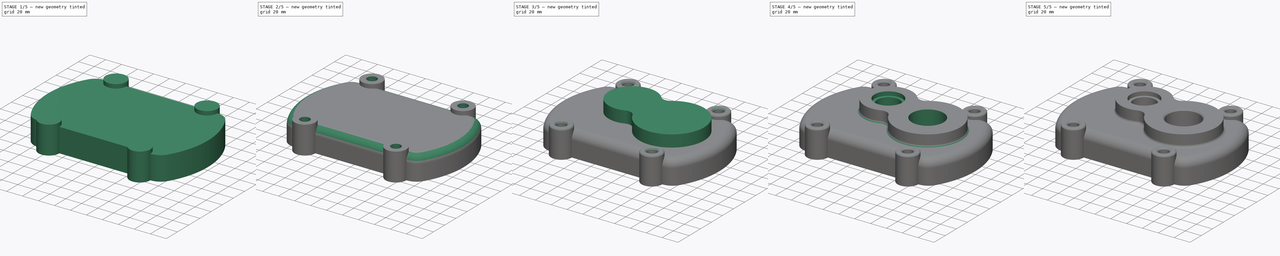
[diagram: build sequence overview — one tinted view per stage of 5, left to right]
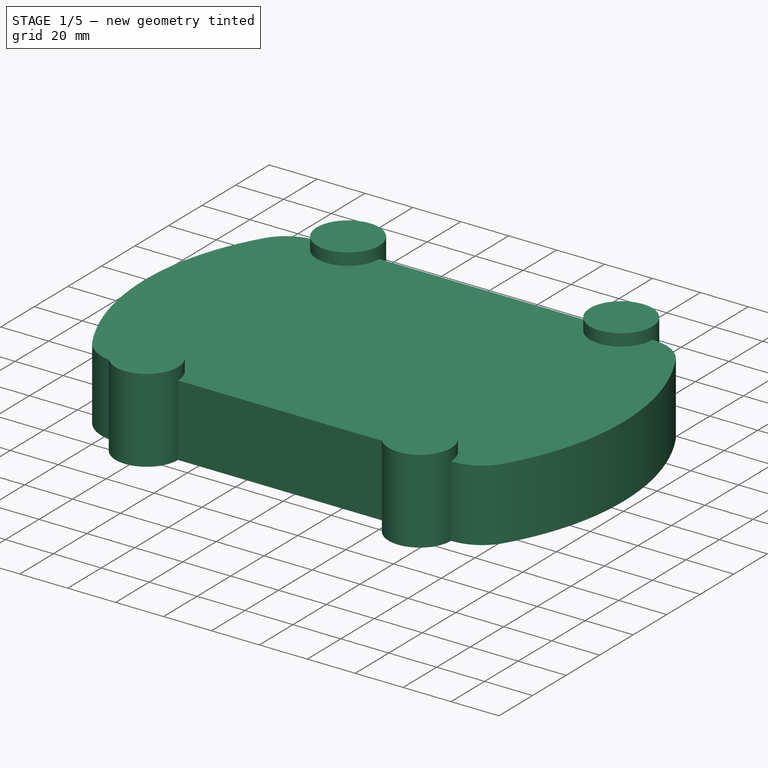
[diagram: stage 1 of 5 — iso view after this stage's code; geometry added in this stage tinted green]
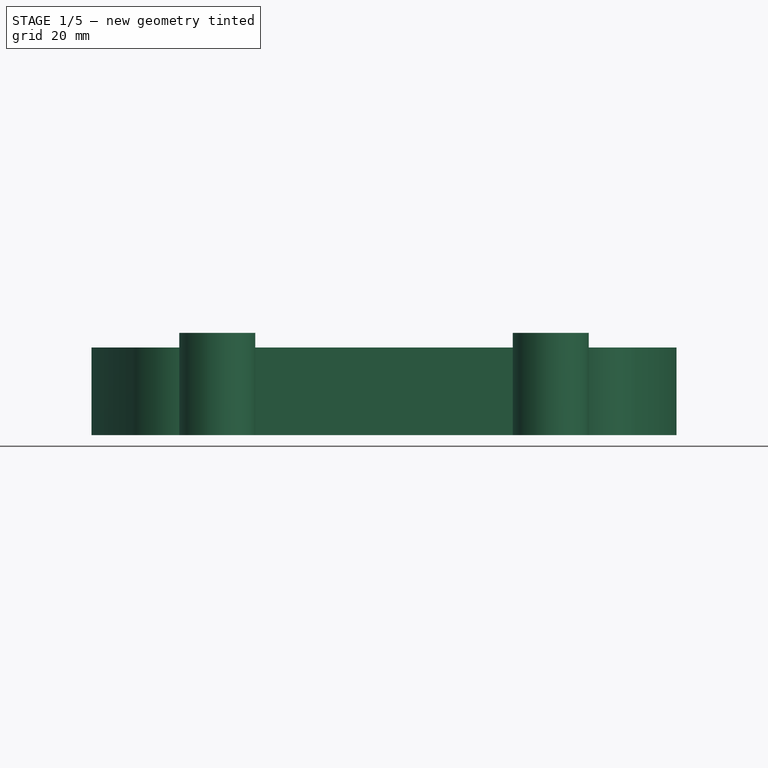
[diagram: stage 1 of 5 — front view after this stage's code; geometry added in this stage tinted green]
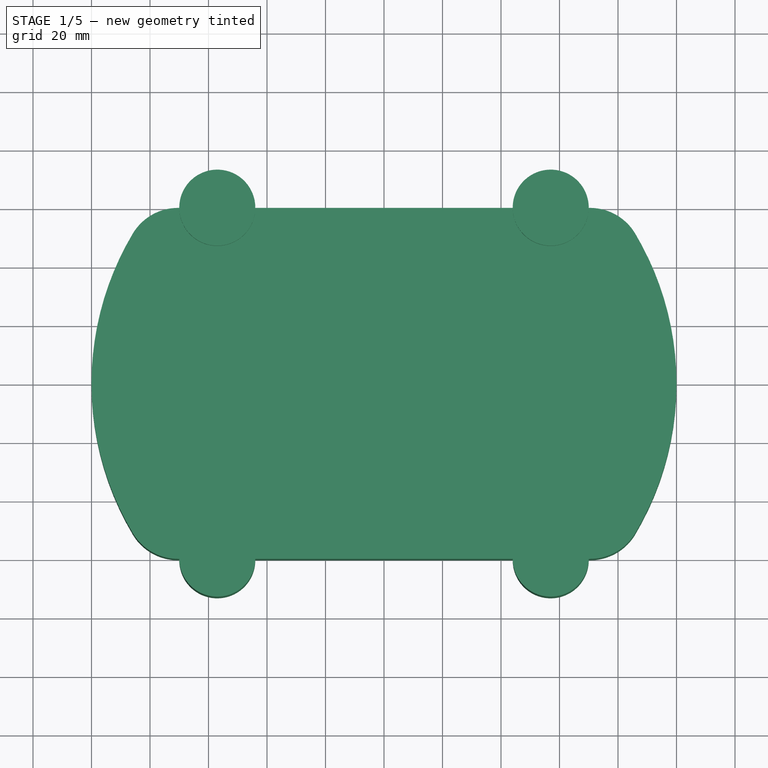
[diagram: stage 1 of 5 — top view after this stage's code; geometry added in this stage tinted green]
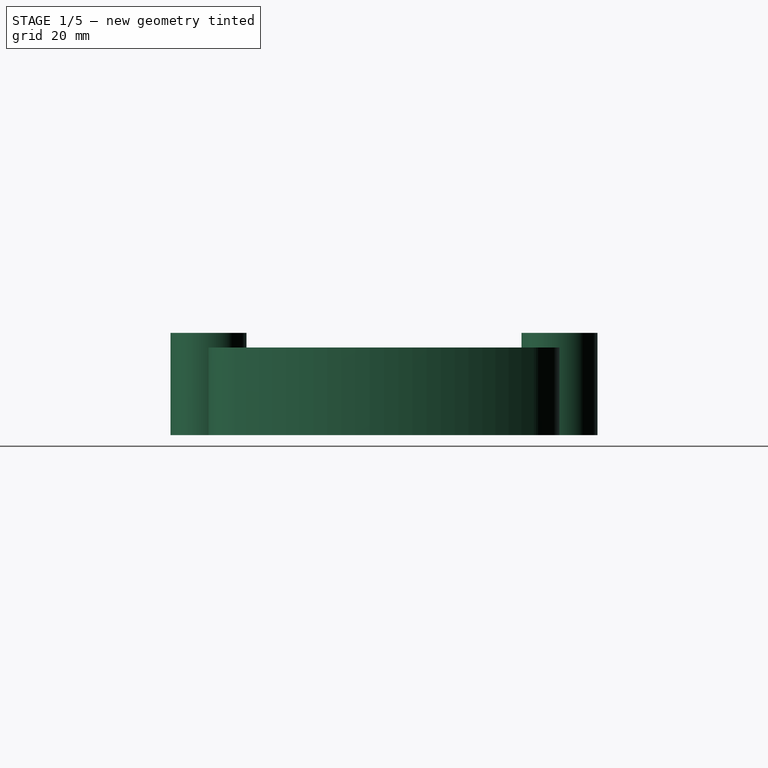
[diagram: stage 1 of 5 — right view after this stage's code; geometry added in this stage tinted green]
FCSTD DOCUMENT  (FreeCAD 0.16RUnknown)
Label: 1
License: All rights reserved
LicenseURL: http://en.wikipedia.org/wiki/All_rights_reserved
objects: Sketcher::SketchObject×7, PartDesign::Fillet×5, PartDesign::Pocket×4, PartDesign::Pad×3, PartDesign::Chamfer×2, Part::MultiFuse×1
note: 29 computed .brp shape members not serialized (recipe doc carries the construction recipe); baked Part::Feature solids carry a one-line shape summary decoded from their .brp

FEATURE [Sketcher::SketchObject] Sketch
  sketch-geometry (4):
    g0: LineSegment StartX=-80 StartY=60 StartZ=0 EndX=80 EndY=60 EndZ=0
    g1: LineSegment StartX=80 StartY=-60 StartZ=0 EndX=-80 EndY=-60 EndZ=0
    g2: ArcOfCircle CenterX=0 CenterY=0 CenterZ=0 NormalX=0 NormalY=0 NormalZ=1 Radius=100 StartAngle=2.49809 EndAngle=3.78509
    g3: ArcOfCircle CenterX=-2e-11 CenterY=-2.4e-11 CenterZ=0 NormalX=0 NormalY=0 NormalZ=1 Radius=100 StartAngle=5.63968 EndAngle=6.92669
  constraints (11):
    c: Coincident(g2,g-1)
    c: Radius(g2) = 100
    c: Coincident(g0,g3)
    c: Coincident(g0,g2)
    c: Coincident(g1,g2)
    c: Radius(g3) = 100
    c: Symmetric(g0,g1,g-1)
    c: DistanceY(g0) = 60
    c: Symmetric(g0,g0,g-2)
    c: Horizontal(g1)
    c: Coincident(g3,g1)
FEATURE [PartDesign::Pad] Pad
  Length = 30
  Length2 = 100
  Sketch = -> Sketch
  Type = 0
FEATURE [PartDesign::Fillet] Fillet
  Base = -> Pad [Edge1,Edge2,Edge5,Edge8]
  Radius = 18
FEATURE [PartDesign::Pad] Pad001
  Length = 5
  Length2 = 30
  Placement = pos=(0,0,30) rot=(0,0,1;0rad)
  Sketch = -> Sketch001
  Type = 4
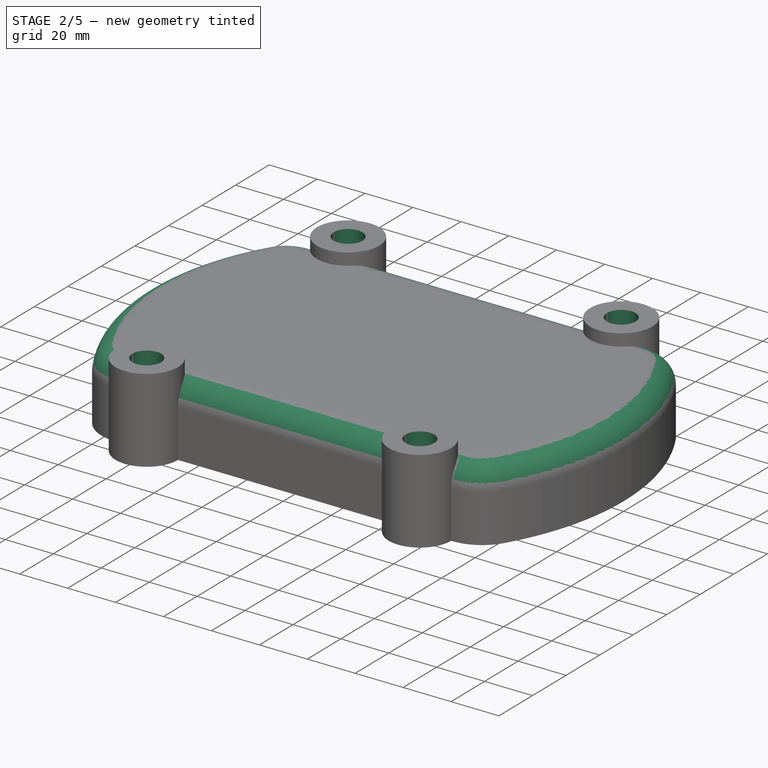
[diagram: stage 2 of 5 — iso view after this stage's code; geometry added in this stage tinted green]
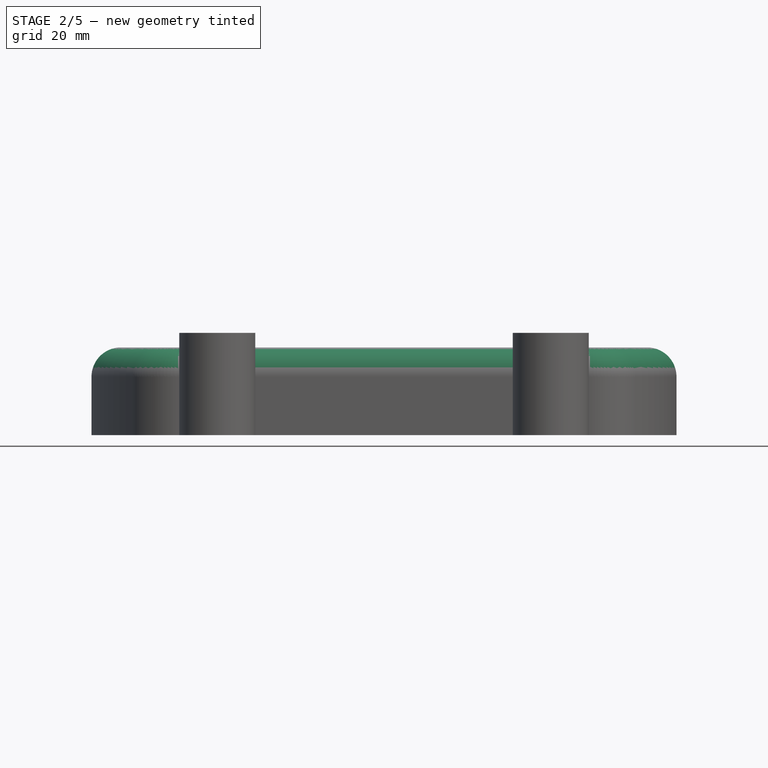
[diagram: stage 2 of 5 — front view after this stage's code; geometry added in this stage tinted green]
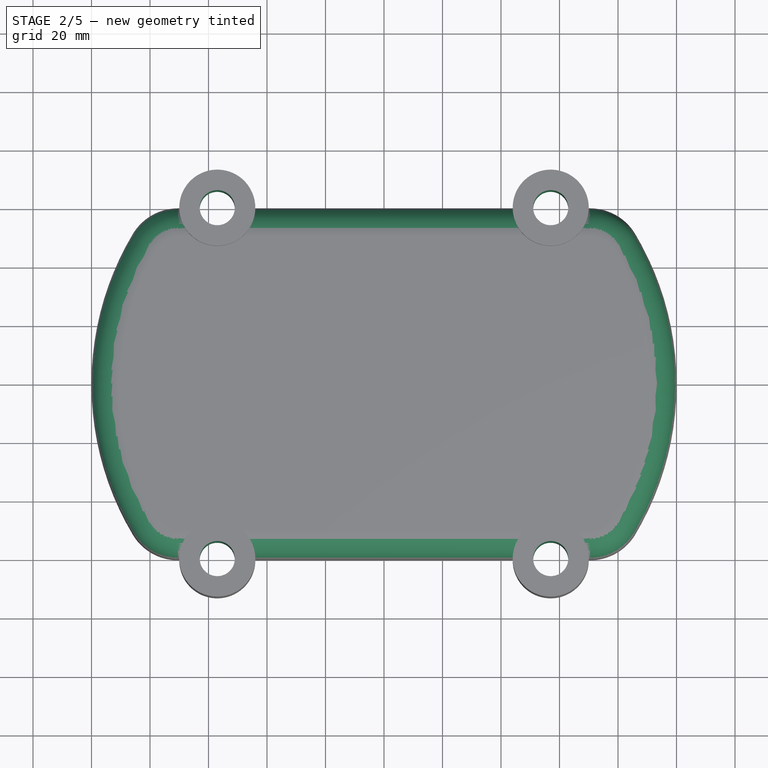
[diagram: stage 2 of 5 — top view after this stage's code; geometry added in this stage tinted green]
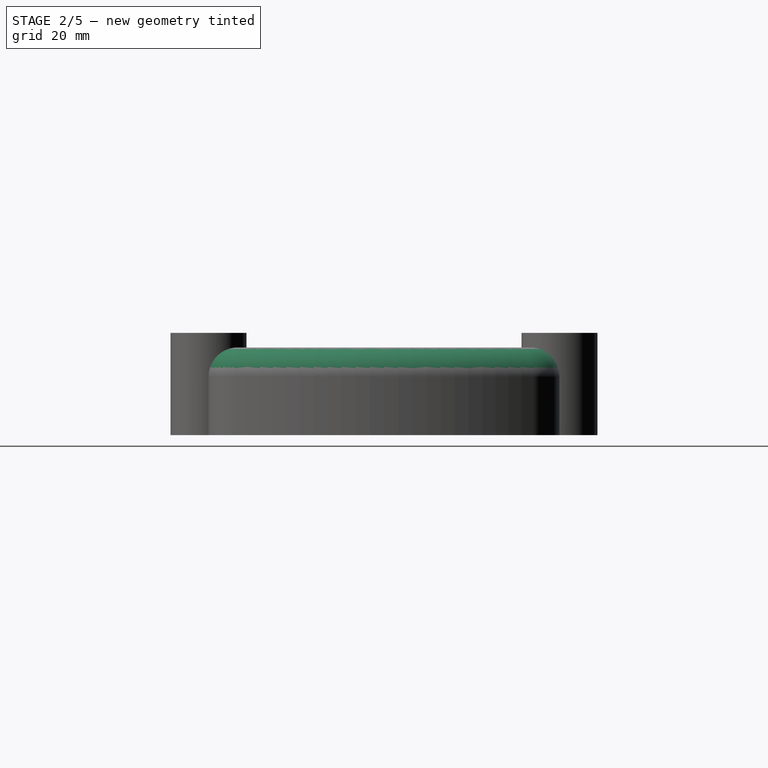
[diagram: stage 2 of 5 — right view after this stage's code; geometry added in this stage tinted green]
FEATURE [Sketcher::SketchObject] Sketch001
  Placement = pos=(0,0,30) rot=(0,0,1;0rad)
  sketch-geometry (4):
    g0: Circle CenterX=-57 CenterY=-60 CenterZ=0 NormalX=0 NormalY=0 NormalZ=1 Radius=13
    g1: Circle CenterX=57 CenterY=-60 CenterZ=0 NormalX=0 NormalY=0 NormalZ=1 Radius=13
    g2: Circle CenterX=-57 CenterY=60 CenterZ=0 NormalX=0 NormalY=0 NormalZ=1 Radius=13
    g3: Circle CenterX=57 CenterY=60 CenterZ=0 NormalX=0 NormalY=0 NormalZ=1 Radius=13
  constraints (5):
    c: Radius(g0) = 13
    c: DistanceX(g0,g-1) = 57
    c: Radius(g1) = 13
    c: Radius(g2) = 13
    c: Radius(g3) = 13
FEATURE [PartDesign::Fillet] Fillet001
  Base = -> Fillet [Edge4,Edge13,Edge15,Edge16,Edge17,Edge18,Edge19,Edge20]
  Radius = 10
FEATURE [Part::MultiFuse] Fusion
  Shapes = -> [Fillet001,Pad001]
FEATURE [Sketcher::SketchObject] Sketch002
  ExternalGeometry = -> [Fusion]
  Placement = pos=(0,0,35) rot=(0,0,1;0rad)
  Support = -> Fusion [Face40]
  sketch-geometry (4):
    g0: Circle CenterX=-57 CenterY=-60 CenterZ=0 NormalX=0 NormalY=0 NormalZ=1 Radius=6
    g1: Circle CenterX=-57 CenterY=60 CenterZ=0 NormalX=0 NormalY=0 NormalZ=1 Radius=6
    g2: Circle CenterX=57 CenterY=60 CenterZ=0 NormalX=0 NormalY=0 NormalZ=1 Radius=6
    g3: Circle CenterX=57 CenterY=-60 CenterZ=0 NormalX=0 NormalY=0 NormalZ=1 Radius=6
  constraints (5):
    c: Coincident(g0,g-3)
    c: Radius(g0) = 6
    c: Radius(g1) = 6
    c: Radius(g3) = 6
    c: Radius(g2) = 6
FEATURE [PartDesign::Pocket] Pocket
  Length = 5
  Sketch = -> Sketch002
  Type = 1
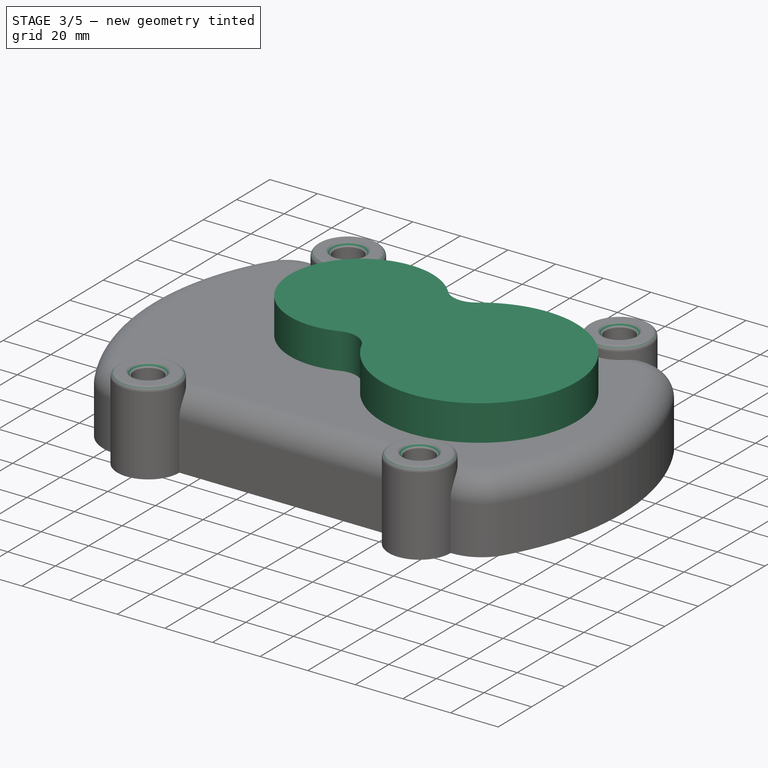
[diagram: stage 3 of 5 — iso view after this stage's code; geometry added in this stage tinted green]
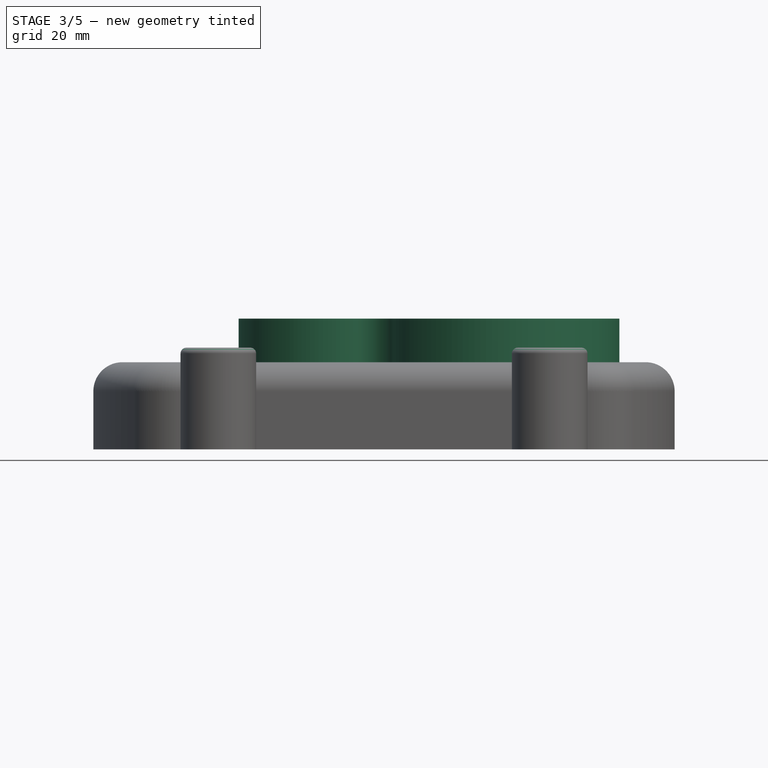
[diagram: stage 3 of 5 — front view after this stage's code; geometry added in this stage tinted green]
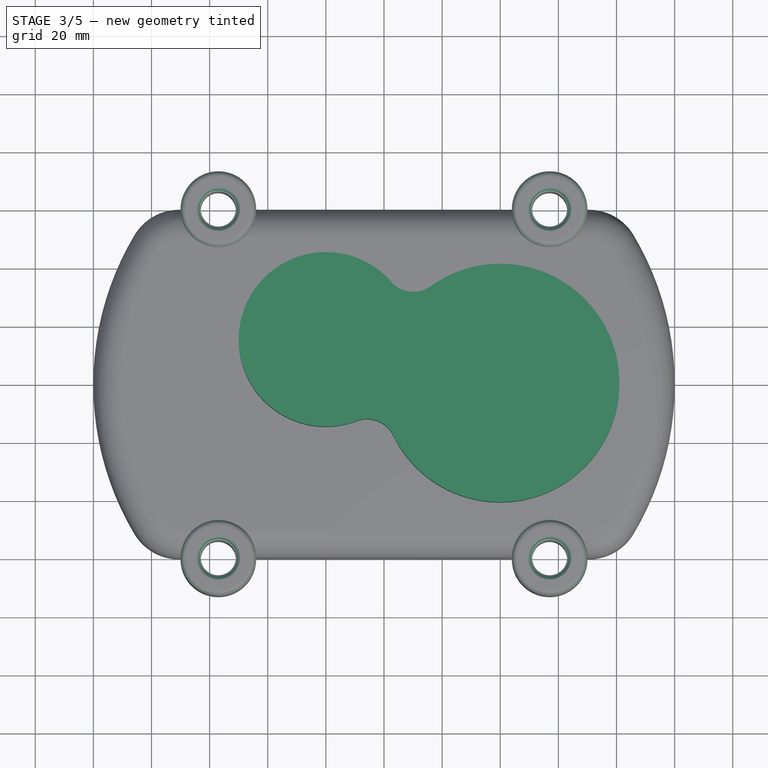
[diagram: stage 3 of 5 — top view after this stage's code; geometry added in this stage tinted green]
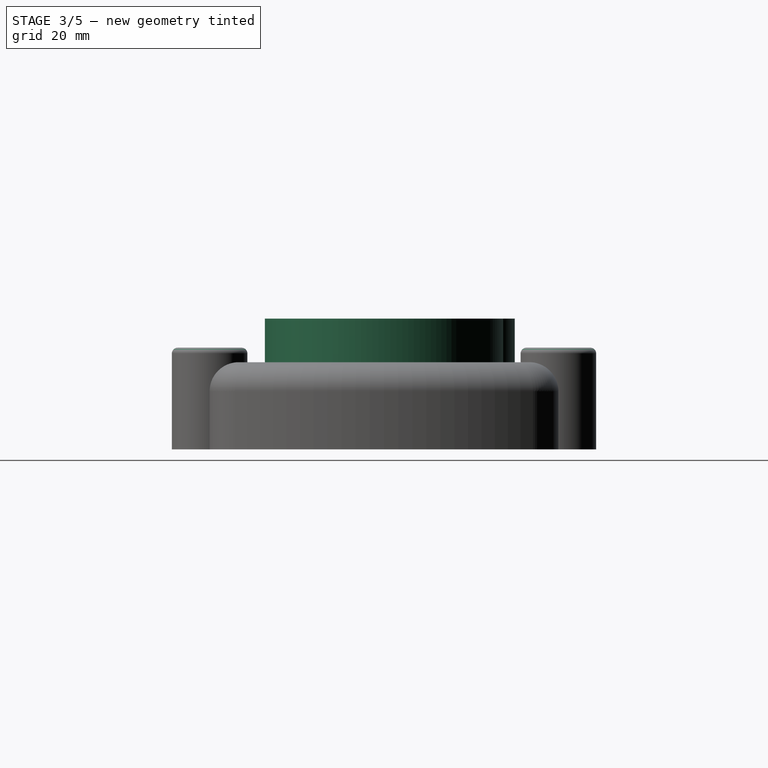
[diagram: stage 3 of 5 — right view after this stage's code; geometry added in this stage tinted green]
FEATURE [PartDesign::Fillet] Fillet002
  Base = -> Pocket [Edge86,Edge97,Edge102,Edge28]
  Radius = 2
FEATURE [PartDesign::Chamfer] Chamfer
  Base = -> Fillet002 [Edge117,Edge119,Edge37,Edge115]
  Size = 1.5
FEATURE [Sketcher::SketchObject] Sketch003
  ExternalGeometry = -> [Chamfer]
  Placement = pos=(0,0,30) rot=(0,0,1;0rad)
  Support = -> Chamfer [Face11]
  sketch-geometry (4):
    g0: ArcOfCircle CenterX=40 CenterY=0 CenterZ=0 NormalX=0 NormalY=0 NormalZ=1 Radius=41 StartAngle=3.59634 EndAngle=8.48007
    g1: ArcOfCircle CenterX=-20 CenterY=15 CenterZ=0 NormalX=0 NormalY=0 NormalZ=1 Radius=30 StartAngle=0.718378 EndAngle=5.07485
    g2: ArcOfCircle CenterX=-5.81694 CenterY=-22.4011 CenterZ=0 NormalX=0 NormalY=0 NormalZ=1 Radius=10 StartAngle=0.454749 EndAngle=1.93326
    g3: ArcOfCircle CenterX=10.115 CenterY=41.3266 CenterZ=0 NormalX=0 NormalY=0 NormalZ=1 Radius=10 StartAngle=3.85997 EndAngle=5.33848
  constraints (16):
    c: PointOnObject(g0,g-1)
    c: Radius(g0) = 41
    c: DistanceX(g1,g0) = 60
    c: DistanceY(g0,g1) = 15
    c: DistanceX(g0,g-3) = 17
    c: Radius(g1) = 30
    c: Tangent(g2,g1)
    c: Tangent(g2,g0)
    c: Tangent(g1,g3)
    c: Tangent(g3,g0)
    c: Radius(g3) = 10
    c: Radius(g2) = 10
    c: Coincident(g2,g1)
    c: Coincident(g0,g2)
    c: Coincident(g0,g3)
    c: Coincident(g1,g3)
FEATURE [PartDesign::Pad] Pad002
  Length = 15
  Length2 = 100
  Sketch = -> Sketch003
  Type = 0
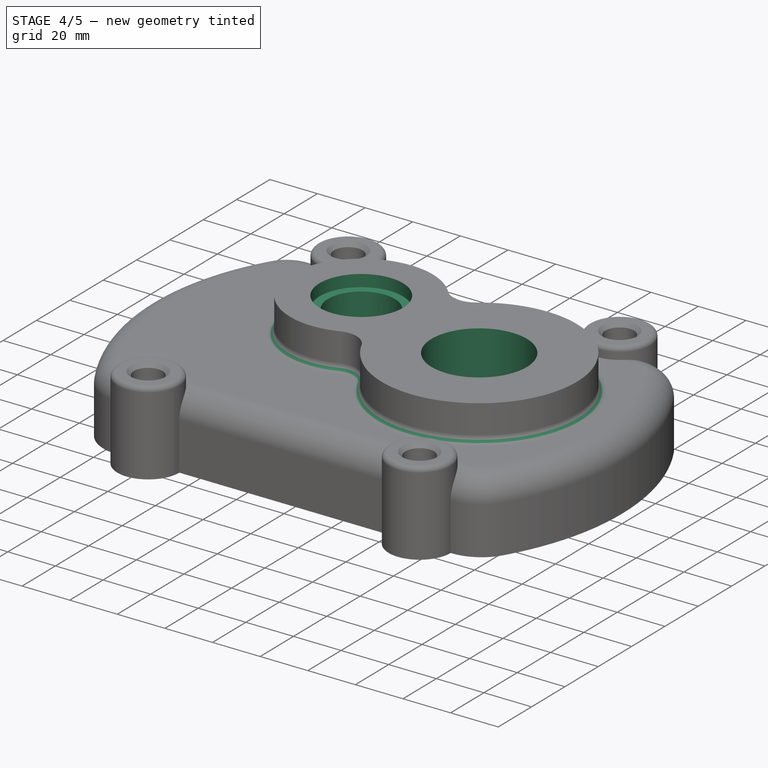
[diagram: stage 4 of 5 — iso view after this stage's code; geometry added in this stage tinted green]
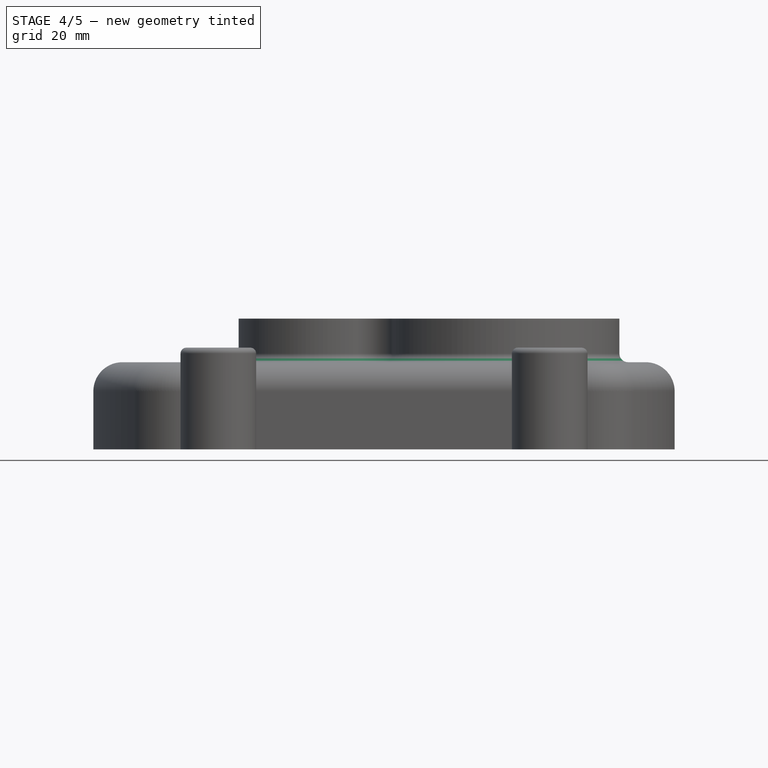
[diagram: stage 4 of 5 — front view after this stage's code; geometry added in this stage tinted green]
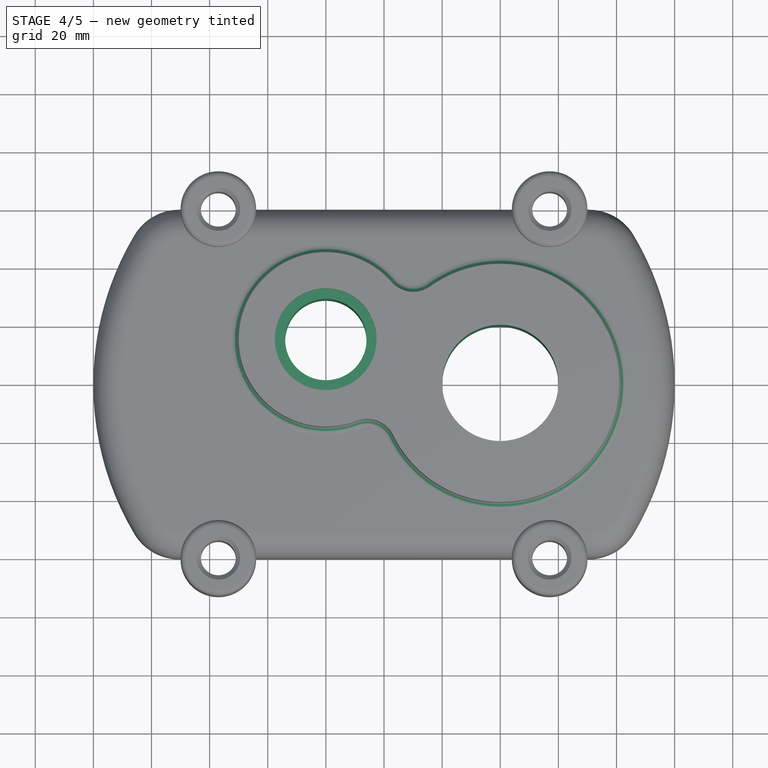
[diagram: stage 4 of 5 — top view after this stage's code; geometry added in this stage tinted green]
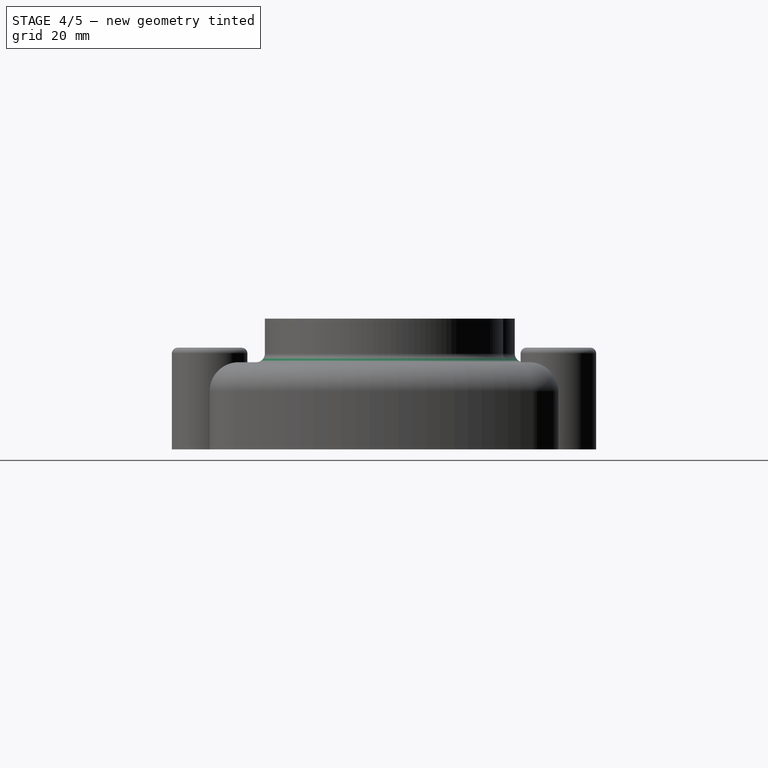
[diagram: stage 4 of 5 — right view after this stage's code; geometry added in this stage tinted green]
FEATURE [PartDesign::Fillet] Fillet003
  Base = -> Pad002 [Edge10,Edge9,Edge6,Edge12]
  Radius = 3
FEATURE [Sketcher::SketchObject] Sketch004
  ExternalGeometry = -> [Fillet003]
  Placement = pos=(0,0,45) rot=(0,0,1;0rad)
  Support = -> Fillet003 [Face4]
  sketch-geometry (2):
    g0: Circle CenterX=-20 CenterY=15 CenterZ=0 NormalX=0 NormalY=0 NormalZ=1 Radius=14
    g1: Circle CenterX=40 CenterY=0 CenterZ=0 NormalX=0 NormalY=0 NormalZ=1 Radius=20
  constraints (4):
    c: Coincident(g0,g-4)
    c: Coincident(g1,g-3)
    c: Radius(g0) = 14
    c: Radius(g1) = 20
FEATURE [PartDesign::Pocket] Pocket001
  Length = 5
  Sketch = -> Sketch004
  Type = 1
FEATURE [Sketcher::SketchObject] Sketch005
  ExternalGeometry = -> [Pocket001]
  Placement = pos=(0,0,45) rot=(0,0,1;0rad)
  Support = -> Pocket001 [Face4]
  sketch-geometry (1):
    g0: Circle CenterX=-20.0581 CenterY=15.0233 CenterZ=0 NormalX=0 NormalY=0 NormalZ=1 Radius=17.5
  constraints (1):
    c: Radius(g0) = 17.5
FEATURE [PartDesign::Pocket] Pocket002
  Length = 5
  Sketch = -> Sketch005
  Type = 0
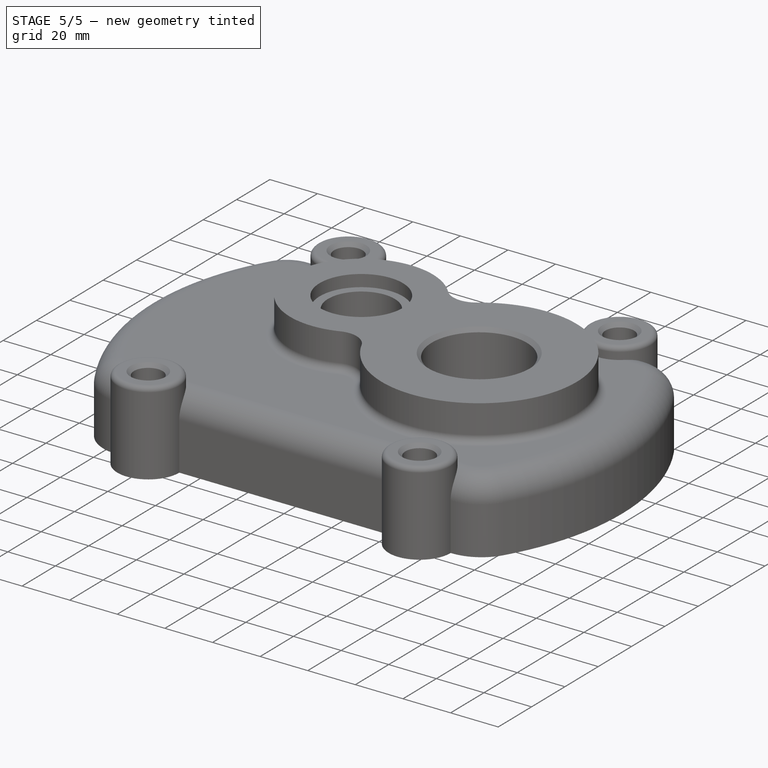
[diagram: stage 5 of 5 — iso view after this stage's code; geometry added in this stage tinted green]
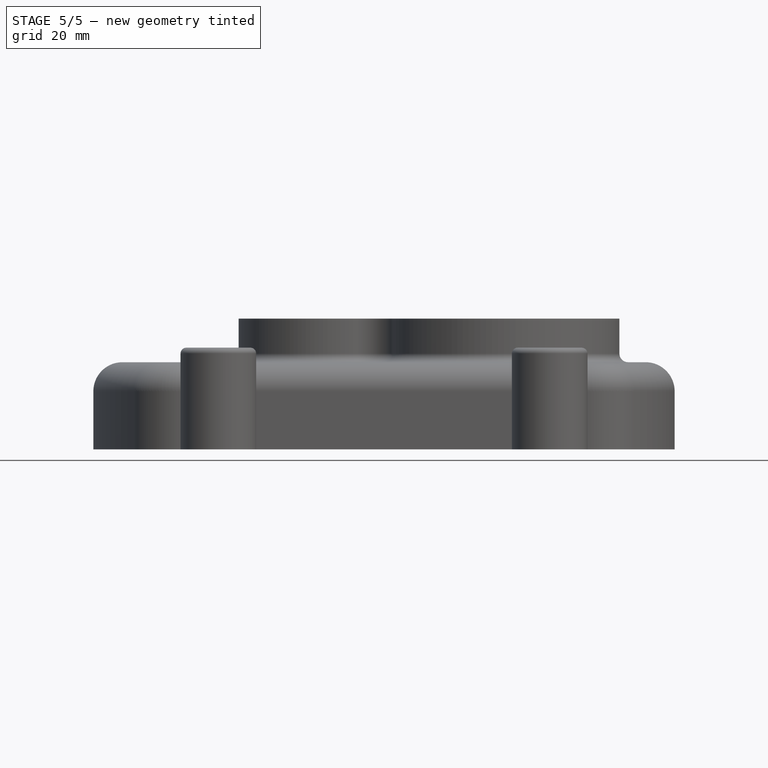
[diagram: stage 5 of 5 — front view after this stage's code; geometry added in this stage tinted green]
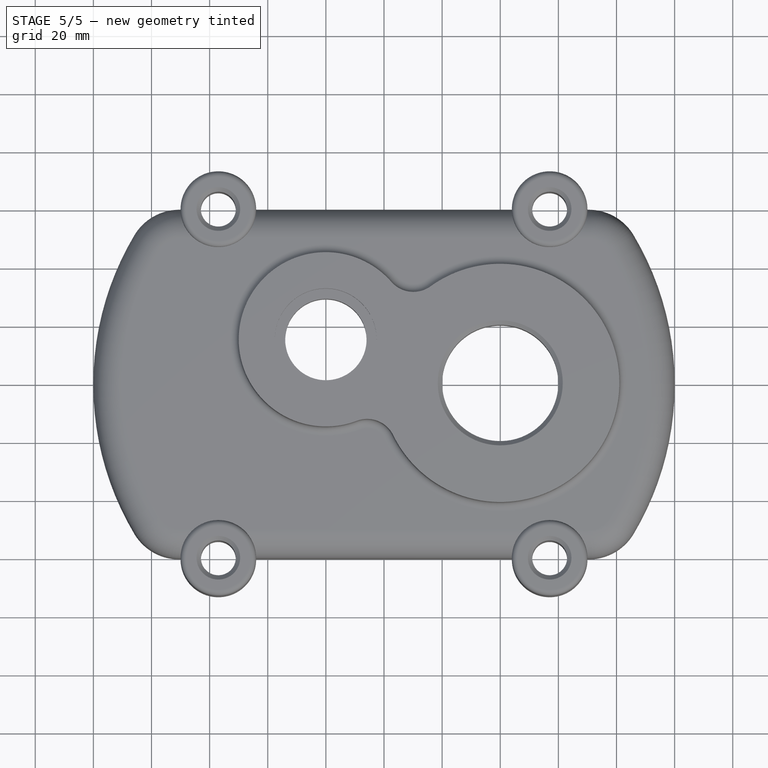
[diagram: stage 5 of 5 — top view after this stage's code; geometry added in this stage tinted green]
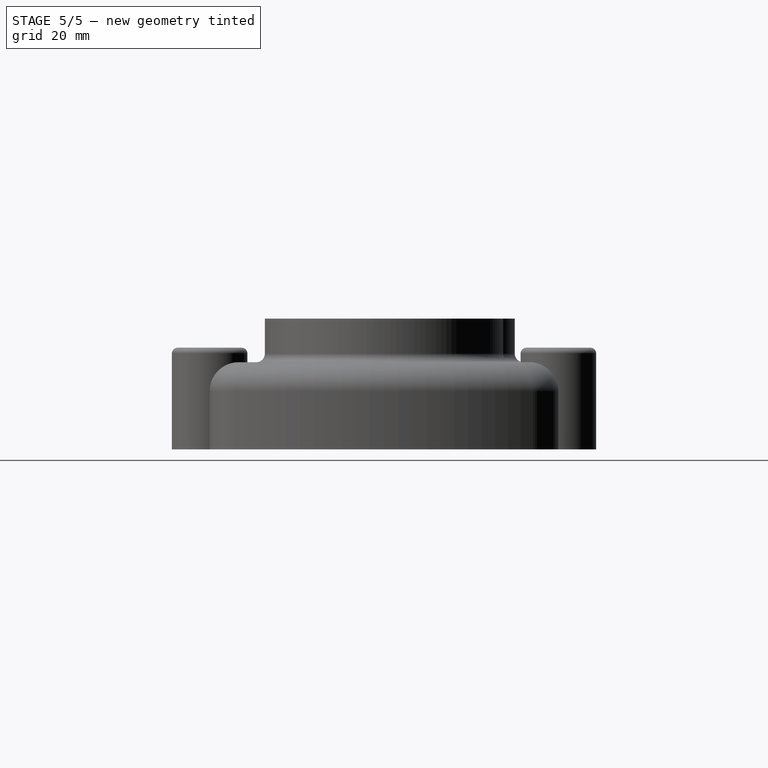
[diagram: stage 5 of 5 — right view after this stage's code; geometry added in this stage tinted green]
FEATURE [PartDesign::Chamfer] Chamfer001
  Base = -> Pocket002 [Edge13]
  Size = 1.5
FEATURE [Sketcher::SketchObject] Sketch006
  ExternalGeometry = -> [Chamfer001]
  Placement = pos=(0,0,0) rot=(1,0,0;3.14159rad)
  Support = -> Chamfer001 [Face14]
  sketch-geometry (4):
    g0: LineSegment StartX=-81.4064 StartY=47 StartZ=0 EndX=81.4064 EndY=47 EndZ=0
    g1: LineSegment StartX=81.4064 StartY=-47 StartZ=0 EndX=-81.4064 EndY=-47 EndZ=0
    g2: ArcOfCircle CenterX=0 CenterY=0 CenterZ=0 NormalX=0 NormalY=0 NormalZ=1 Radius=94 StartAngle=2.61799 EndAngle=3.66519
    g3: ArcOfCircle CenterX=0 CenterY=0 CenterZ=0 NormalX=0 NormalY=0 NormalZ=1 Radius=94 StartAngle=5.75959 EndAngle=6.80678
  constraints (13):
    c: Horizontal(g0)
    c: Symmetric(g1,g1,g-2)
    c: Symmetric(g1,g0,g-1)
    c: DistanceY(g1,g0) = 94
    c: Coincident(g2,g-1)
    c: Radius(g2) = 94
    c: Radius(g3) = 94
    c: Radius(g-3) = 18
    c: Coincident(g0,g3)
    c: Coincident(g0,g2)
    c: Coincident(g3,g-1)
    c: Coincident(g3,g1)
    c: Coincident(g2,g1)
FEATURE [PartDesign::Pocket] Pocket003
  Length = 24
  Sketch = -> Sketch006
  Type = 0
FEATURE [PartDesign::Fillet] Fillet004
  Base = -> Pocket003 [Edge33,Edge31,Edge32,Edge30]
  Radius = 3
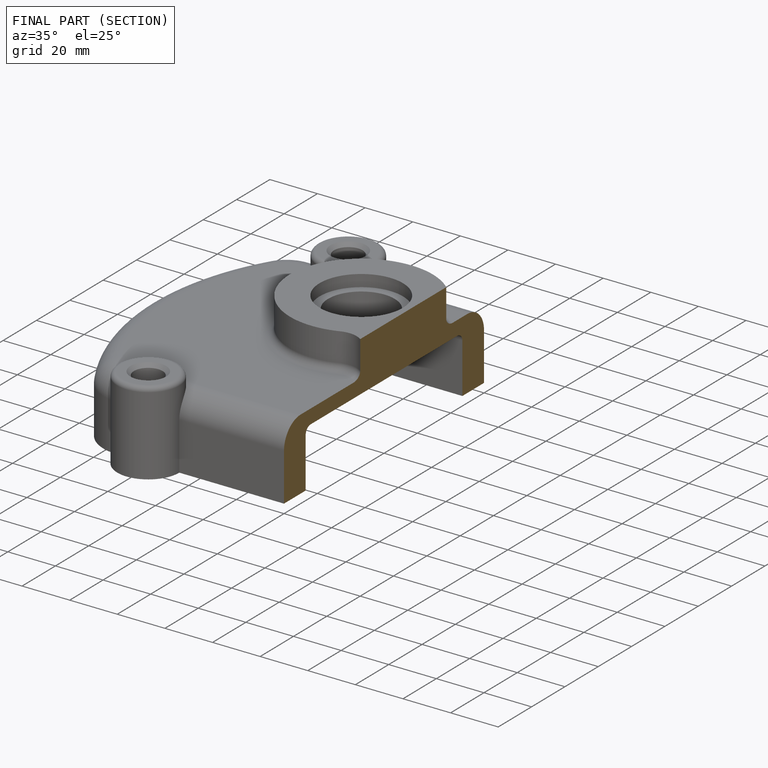
[diagram: finished part — half-section view (interior)]
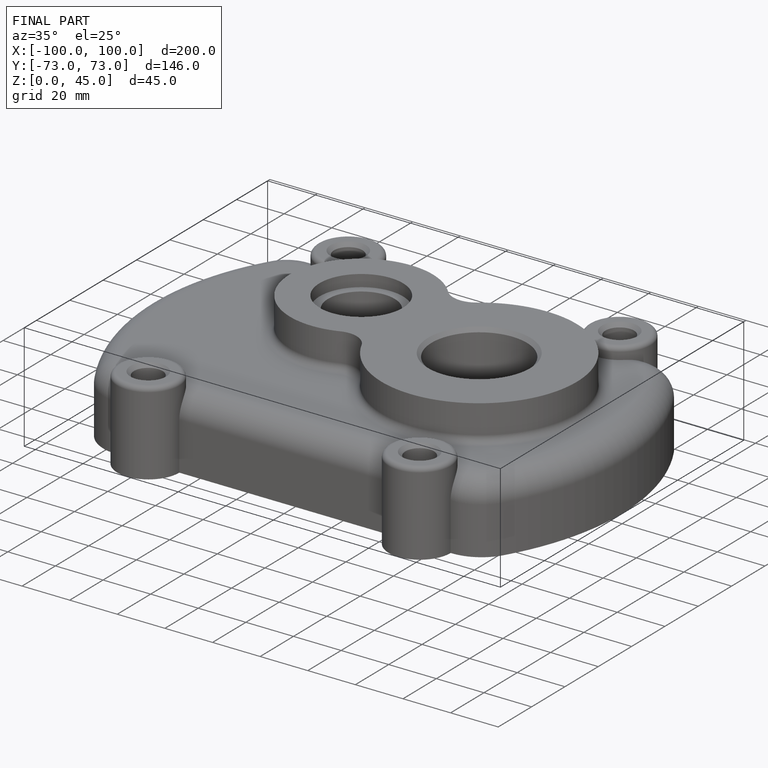
[diagram: finished part — iso view with bounding-box wireframe]
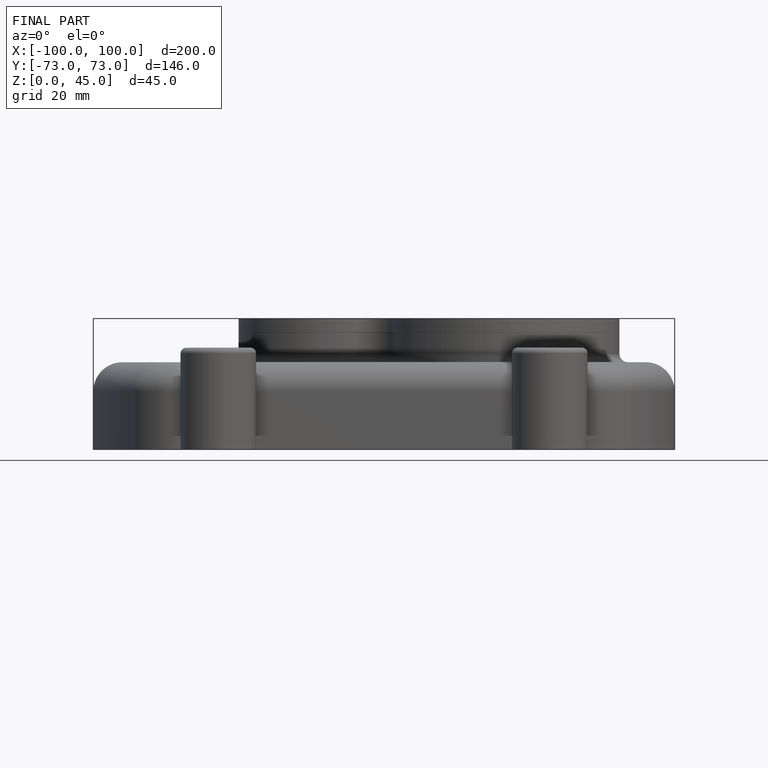
[diagram: finished part — front view with bounding-box wireframe]
